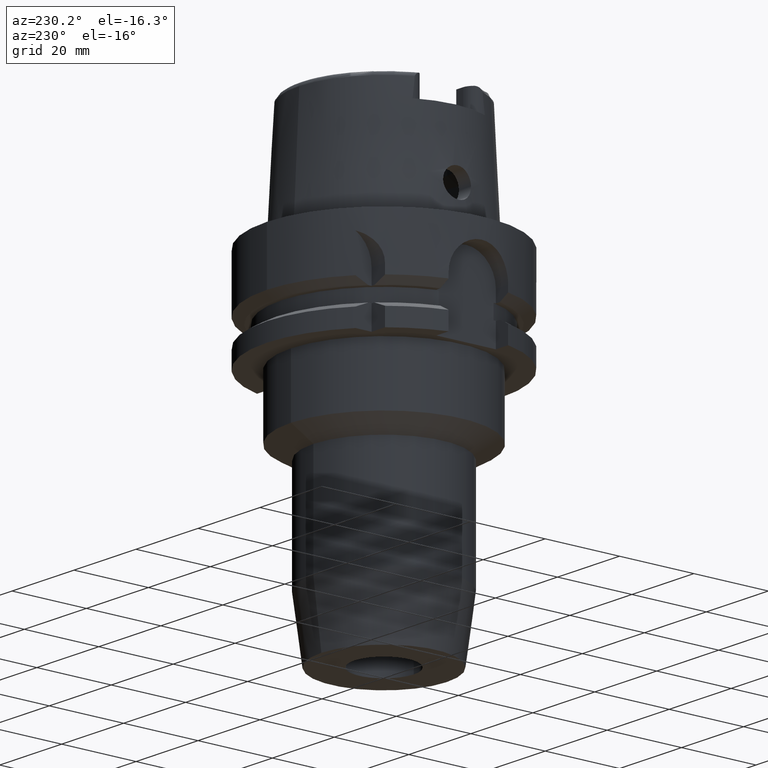
[diagram: clean part render]
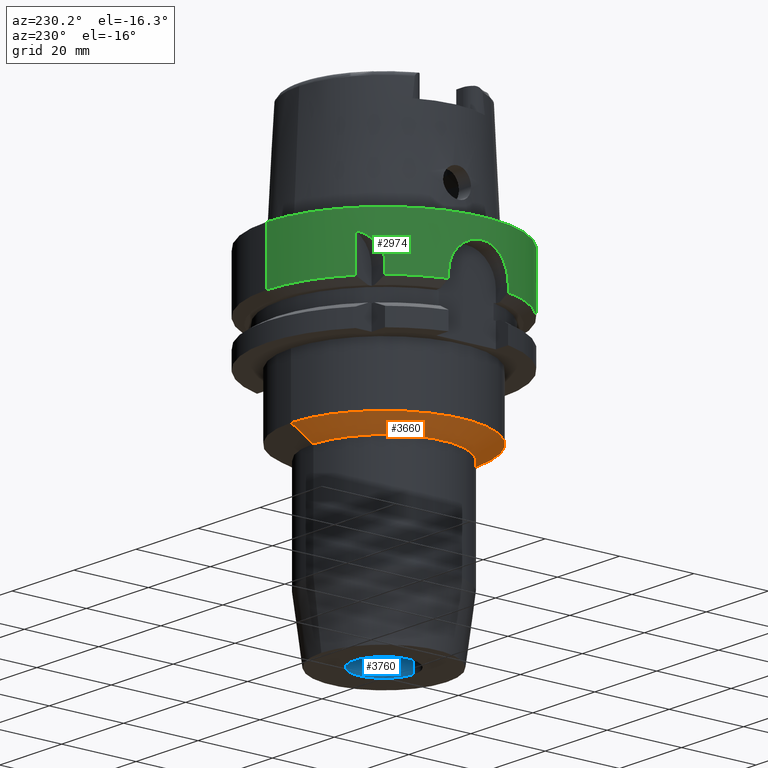
[diagram: same view with three faces highlighted in distinct colors, each labeled with its STEP entity id]
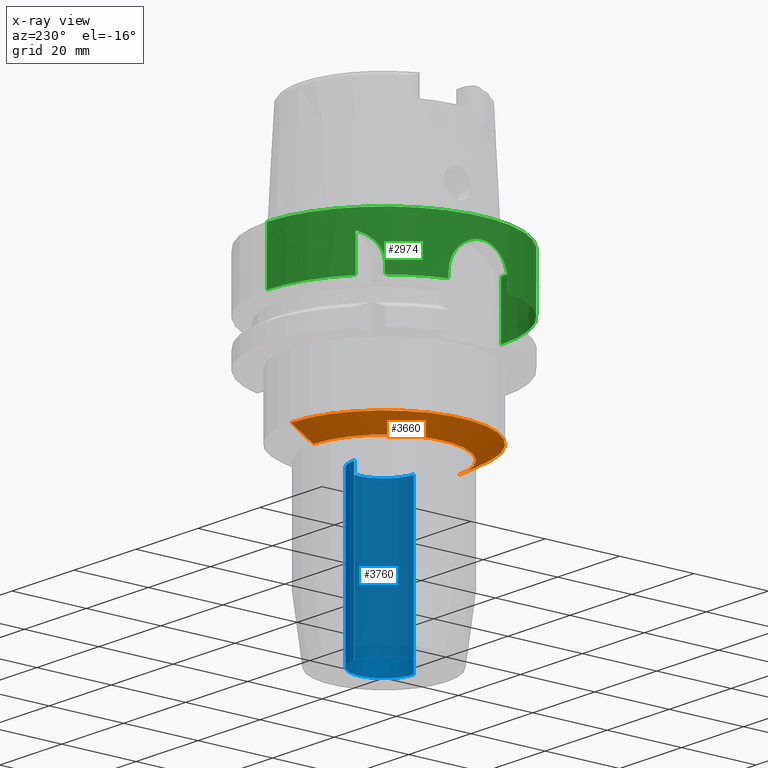
[diagram: x-ray of the same camera — body ghosted, the three highlighted faces saturated]
A machine part, auxiliary view with three faces highlighted in distinct colors.
The next image is the same camera in x-ray (body ghosted, the three faces saturated) — at least one of them is partly hidden behind the body in this view.
Their STEP definitions:

[orange] entity #3660 — the highlighted conical surface has half-angle 60.162 deg.
#1631=DIRECTION('',(0.E0,-8.674356569294E-1,-4.975493755272E-1));
#1632=VECTOR('',#1631,6.916939547123E0);
#1633=CARTESIAN_POINT('',(0.E0,2.5E1,-4.2E1));
#1634=LINE('',#1633,#1632);
#1654=CARTESIAN_POINT('',(0.E0,0.E0,-4.2E1));
#1655=DIRECTION('',(0.E0,0.E0,1.E0));
#1656=DIRECTION('',(0.E0,1.E0,0.E0));
#1657=AXIS2_PLACEMENT_3D('',#1654,#1655,#1656);
#1662=DIRECTION('',(0.E0,8.674356569294E-1,-4.975493755272E-1));
#1663=VECTOR('',#1662,6.916939547123E0);
#1664=CARTESIAN_POINT('',(0.E0,-2.5E1,-4.2E1));
#1665=LINE('',#1664,#1663);
#1669=CARTESIAN_POINT('',(0.E0,0.E0,-4.544151895223E1));
#1670=DIRECTION('',(0.E0,0.E0,-1.E0));
#1671=DIRECTION('',(0.E0,-1.E0,0.E0));
#1672=AXIS2_PLACEMENT_3D('',#1669,#1670,#1671);
#2396=CARTESIAN_POINT('',(0.E0,1.9E1,-4.544151895223E1));
#2397=VERTEX_POINT('',#2396);
#2398=CARTESIAN_POINT('',(0.E0,-1.9E1,-4.544151895223E1));
#2399=VERTEX_POINT('',#2398);
#2400=CARTESIAN_POINT('',(0.E0,2.5E1,-4.2E1));
#2401=VERTEX_POINT('',#2400);
#2402=CARTESIAN_POINT('',(0.E0,-2.5E1,-4.2E1));
#2403=VERTEX_POINT('',#2402);
#3648=CARTESIAN_POINT('',(0.E0,0.E0,-4.372075947612E1));
#3649=DIRECTION('',(0.E0,0.E0,1.E0));
#3650=DIRECTION('',(0.E0,1.E0,0.E0));
#3651=AXIS2_PLACEMENT_3D('',#3648,#3649,#3650);
#3652=CONICAL_SURFACE('',#3651,2.2E1,6.0162E1);
#3653=ORIENTED_EDGE('',*,*,#3638,.F.);
#3654=ORIENTED_EDGE('',*,*,#3615,.T.);
#3655=ORIENTED_EDGE('',*,*,#3642,.T.);
#3657=ORIENTED_EDGE('',*,*,#3656,.T.);
#3658=EDGE_LOOP('',(#3653,#3654,#3655,#3657));
#3659=FACE_OUTER_BOUND('',#3658,.F.);
#1658=CIRCLE('',#1657,2.5E1);
#1673=CIRCLE('',#1672,1.9E1);
#3615=EDGE_CURVE('',#2401,#2403,#1658,.T.);
#3638=EDGE_CURVE('',#2401,#2397,#1634,.T.);
#3642=EDGE_CURVE('',#2403,#2399,#1665,.T.);
#3656=EDGE_CURVE('',#2399,#2397,#1673,.T.);
#3660=ADVANCED_FACE('',(#3659),#3652,.T.);

[blue] entity #3760 — the highlighted cylindrical surface (partial cylindrical patch) has radius 8 mm, axis along (0, 0, 1).
#1745=CARTESIAN_POINT('',(0.E0,0.E0,-9.E1));
#1746=DIRECTION('',(0.E0,0.E0,-1.E0));
#1747=DIRECTION('',(0.E0,1.E0,0.E0));
#1748=AXIS2_PLACEMENT_3D('',#1745,#1746,#1747);
#1753=DIRECTION('',(0.E0,0.E0,1.E0));
#1754=VECTOR('',#1753,4.3E1);
#1755=CARTESIAN_POINT('',(0.E0,-8.E0,-9.E1));
#1756=LINE('',#1755,#1754);
#1760=DIRECTION('',(0.E0,0.E0,1.E0));
#1761=VECTOR('',#1760,4.3E1);
#1762=CARTESIAN_POINT('',(0.E0,8.E0,-9.E1));
#1763=LINE('',#1762,#1761);
#1783=CARTESIAN_POINT('',(0.E0,0.E0,-4.7E1));
#1784=DIRECTION('',(0.E0,0.E0,1.E0));
#1785=DIRECTION('',(0.E0,-1.E0,0.E0));
#1786=AXIS2_PLACEMENT_3D('',#1783,#1784,#1785);
#2380=CARTESIAN_POINT('',(0.E0,-8.E0,-4.7E1));
#2381=CARTESIAN_POINT('',(0.E0,8.E0,-4.7E1));
#2382=VERTEX_POINT('',#2380);
#2383=VERTEX_POINT('',#2381);
#2384=CARTESIAN_POINT('',(0.E0,8.E0,-9.E1));
#2385=VERTEX_POINT('',#2384);
#2386=CARTESIAN_POINT('',(0.E0,-8.E0,-9.E1));
#2387=VERTEX_POINT('',#2386);
#3748=CARTESIAN_POINT('',(0.E0,0.E0,-9.61E1));
#3749=DIRECTION('',(0.E0,0.E0,1.E0));
#3750=DIRECTION('',(0.E0,1.E0,0.E0));
#3751=AXIS2_PLACEMENT_3D('',#3748,#3749,#3750);
#3752=CYLINDRICAL_SURFACE('',#3751,8.E0);
#3753=ORIENTED_EDGE('',*,*,#3738,.T.);
#3755=ORIENTED_EDGE('',*,*,#3754,.F.);
#3756=ORIENTED_EDGE('',*,*,#3741,.F.);
#3757=ORIENTED_EDGE('',*,*,#3728,.F.);
#3758=EDGE_LOOP('',(#3753,#3755,#3756,#3757));
#3759=FACE_OUTER_BOUND('',#3758,.F.);
#1749=CIRCLE('',#1748,8.E0);
#1787=CIRCLE('',#1786,8.E0);
#3728=EDGE_CURVE('',#2385,#2387,#1749,.T.);
#3738=EDGE_CURVE('',#2385,#2383,#1763,.T.);
#3741=EDGE_CURVE('',#2387,#2382,#1756,.T.);
#3754=EDGE_CURVE('',#2382,#2383,#1787,.T.);
#3760=ADVANCED_FACE('',(#3759),#3752,.F.);

[green] entity #2974 — the highlighted cylindrical surface (partial cylindrical patch) has radius 31.5 mm, axis along (0, 0, 1).
#618=CARTESIAN_POINT('',(0.E0,0.E0,-4.263256414561E-14));
#619=DIRECTION('',(0.E0,0.E0,-1.E0));
#620=DIRECTION('',(0.E0,-1.E0,0.E0));
#621=AXIS2_PLACEMENT_3D('',#618,#619,#620);
#650=DIRECTION('',(-1.431529749944E-6,-1.176463978184E-6,-9.999999999983E-1));
#651=VECTOR('',#650,9.622451542092E0);
#652=CARTESIAN_POINT('',(-2.E1,2.433618704728E1,-5.000000000001E0));
#653=LINE('',#652,#651);
#657=DIRECTION('',(0.E0,-2.672583210396E-14,-1.E0));
#658=VECTOR('',#657,1.462250092524E1);
#659=CARTESIAN_POINT('',(0.E0,-3.15E1,1.894780628694E-14));
#660=LINE('',#659,#658);
#664=DIRECTION('',(-7.698373962255E-8,2.931890911883E-7,1.E0));
#665=VECTOR('',#664,1.622496606907E0);
#666=CARTESIAN_POINT('',(-3.046719534826E1,-8.000000475699E0,
-1.462249660691E1));
#667=LINE('',#666,#665);
#671=DIRECTION('',(-1.650069069103E-8,-6.283695033249E-8,-1.E0));
#672=VECTOR('',#671,1.622501850751E0);
#673=CARTESIAN_POINT('',(-3.046719547316E1,8.E0,-1.3E1));
#674=LINE('',#673,#672);
#678=DIRECTION('',(9.894060569839E-7,1.203919407604E-6,9.999999999988E-1));
#679=VECTOR('',#678,2.510797856236E0);
#680=CARTESIAN_POINT('',(-2.433618953148E1,1.999999697720E1,-1.462251175989E1));
#681=LINE('',#680,#679);
#685=CARTESIAN_POINT('',(-2.433618704728E1,2.E1,-1.211171390366E1));
#686=CARTESIAN_POINT('',(-2.433618704728E1,2.E1,-1.187976151639E1));
#687=CARTESIAN_POINT('',(-2.431967187217E1,2.002012070355E1,-1.141744171597E1));
#688=CARTESIAN_POINT('',(-2.424523651690E1,2.011035399618E1,-1.072764128587E1));
#689=CARTESIAN_POINT('',(-2.411963477382E1,2.026107967140E1,-1.004474704322E1));
#690=CARTESIAN_POINT('',(-2.394163707904E1,2.047146912532E1,-9.375543683463E0));
#691=CARTESIAN_POINT('',(-2.370766791638E1,2.074244920129E1,-8.721098005837E0));
#692=CARTESIAN_POINT('',(-2.341495401843E1,2.107291923719E1,-8.088342194841E0));
#693=CARTESIAN_POINT('',(-2.305738335122E1,2.146431902688E1,-7.478997873355E0));
#694=CARTESIAN_POINT('',(-2.262952407326E1,2.191582805010E1,-6.899673137808E0));
#695=CARTESIAN_POINT('',(-2.212344080216E1,2.242769169688E1,-6.355027265746E0));
#696=CARTESIAN_POINT('',(-2.152829385766E1,2.300088386258E1,-5.850141482533E0));
#697=CARTESIAN_POINT('',(-2.083304074189E1,2.363406048311E1,-5.392523506350E0));
#698=CARTESIAN_POINT('',(-2.029154814905E1,2.409658653099E1,-5.123437400174E0));
#699=CARTESIAN_POINT('',(-2.E1,2.433618704728E1,-5.000000000001E0));
#716=CARTESIAN_POINT('',(-2.000001377482E1,2.433617572681E1,-1.462245154208E1));
#797=CARTESIAN_POINT('',(-2.433618953148E1,1.999999697720E1,-1.462251175989E1));
#814=CARTESIAN_POINT('',(0.E0,0.E0,-1.462250092524E1));
#815=DIRECTION('',(0.E0,0.E0,1.E0));
#816=DIRECTION('',(-7.725773665802E-1,6.349206349206E-1,0.E0));
#817=AXIS2_PLACEMENT_3D('',#814,#815,#816);
#822=CARTESIAN_POINT('',(-3.046719549993E1,7.999999898047E0,-1.462250185075E1));
#846=CARTESIAN_POINT('',(-3.046719547316E1,8.E0,-1.3E1));
#847=CARTESIAN_POINT('',(-3.046719547316E1,8.E0,-1.245224003607E1));
#848=CARTESIAN_POINT('',(-3.049727303426E1,7.887058323595E0,-1.135073918024E1));
#849=CARTESIAN_POINT('',(-3.062689466042E1,7.375462100777E0,-9.752102770187E0));
#850=CARTESIAN_POINT('',(-3.082074453848E1,6.532773635205E0,-8.278876849185E0));
#851=CARTESIAN_POINT('',(-3.104430623296E1,5.390237385849E0,-7.006966913826E0));
#852=CARTESIAN_POINT('',(-3.125563068838E1,4.008870959063E0,-6.008196302168E0));
#853=CARTESIAN_POINT('',(-3.141705811214E1,2.464778611533E0,-5.328000548067E0));
#854=CARTESIAN_POINT('',(-3.150356827909E1,8.304197450128E-1,
-4.985634634504E0));
#855=CARTESIAN_POINT('',(-3.150352683520E1,-8.321668194072E-1,
-4.985822563404E0));
#856=CARTESIAN_POINT('',(-3.141693342003E1,-2.466337132339E0,
-5.328506065960E0));
#857=CARTESIAN_POINT('',(-3.125544521441E1,-4.010327446364E0,
-6.009023176732E0));
#858=CARTESIAN_POINT('',(-3.104408251685E1,-5.391520358267E0,
-7.008128874597E0));
#859=CARTESIAN_POINT('',(-3.082053940857E1,-6.533720827611E0,
-8.280182636067E0));
#860=CARTESIAN_POINT('',(-3.062672186404E1,-7.376197431370E0,
-9.753750452463E0));
#861=CARTESIAN_POINT('',(-3.049718861268E1,-7.887319828262E0,
-1.135225951337E1));
#862=CARTESIAN_POINT('',(-3.046719547316E1,-8.E0,-1.245284904069E1));
#863=CARTESIAN_POINT('',(-3.046719547316E1,-8.E0,-1.3E1));
#1307=CARTESIAN_POINT('',(0.E0,0.E0,-1.462250092524E1));
#1308=DIRECTION('',(0.E0,0.E0,1.E0));
#1309=DIRECTION('',(-9.672125547036E-1,-2.539682539683E-1,0.E0));
#1310=AXIS2_PLACEMENT_3D('',#1307,#1308,#1309);
#1377=DIRECTION('',(0.E0,2.672583210396E-14,-1.E0));
#1378=VECTOR('',#1377,1.462250092524E1);
#1379=CARTESIAN_POINT('',(0.E0,3.15E1,1.894780628694E-14));
#1380=LINE('',#1379,#1378);
#1438=CARTESIAN_POINT('',(0.E0,0.E0,-1.462250092524E1));
#1439=DIRECTION('',(0.E0,0.E0,1.E0));
#1440=DIRECTION('',(0.E0,1.E0,0.E0));
#1441=AXIS2_PLACEMENT_3D('',#1438,#1439,#1440);
#2443=VERTEX_POINT('',#716);
#2444=CARTESIAN_POINT('',(-2.E1,2.433618704728E1,-5.000000000001E0));
#2445=VERTEX_POINT('',#2444);
#2472=CARTESIAN_POINT('',(-3.046719547316E1,-8.E0,-1.3E1));
#2473=VERTEX_POINT('',#2472);
#2474=CARTESIAN_POINT('',(-3.046719534826E1,-8.000000475699E0,
-1.462249660691E1));
#2475=VERTEX_POINT('',#2474);
#2495=VERTEX_POINT('',#822);
#2496=CARTESIAN_POINT('',(-3.046719547316E1,8.E0,-1.3E1));
#2497=VERTEX_POINT('',#2496);
#2551=CARTESIAN_POINT('',(0.E0,-3.15E1,-1.462250092524E1));
#2552=VERTEX_POINT('',#2551);
#2554=CARTESIAN_POINT('',(0.E0,3.15E1,-1.462250092524E1));
#2555=VERTEX_POINT('',#2554);
#2556=VERTEX_POINT('',#797);
#2557=CARTESIAN_POINT('',(0.E0,3.15E1,1.894780628694E-14));
#2558=VERTEX_POINT('',#2557);
#2559=CARTESIAN_POINT('',(0.E0,-3.15E1,-4.263256414561E-14));
#2560=VERTEX_POINT('',#2559);
#2561=CARTESIAN_POINT('',(-2.433618704728E1,2.E1,-1.211171390366E1));
#2562=VERTEX_POINT('',#2561);
#2944=CARTESIAN_POINT('',(0.E0,0.E0,-9.61E1));
#2945=DIRECTION('',(0.E0,0.E0,1.E0));
#2946=DIRECTION('',(0.E0,1.E0,0.E0));
#2947=AXIS2_PLACEMENT_3D('',#2944,#2945,#2946);
#2948=CYLINDRICAL_SURFACE('',#2947,3.15E1);
#2950=ORIENTED_EDGE('',*,*,#2949,.T.);
#2952=ORIENTED_EDGE('',*,*,#2951,.F.);
#2954=ORIENTED_EDGE('',*,*,#2953,.F.);
#2955=ORIENTED_EDGE('',*,*,#2933,.F.);
#2957=ORIENTED_EDGE('',*,*,#2956,.T.);
#2959=ORIENTED_EDGE('',*,*,#2958,.F.);
#2961=ORIENTED_EDGE('',*,*,#2960,.T.);
#2963=ORIENTED_EDGE('',*,*,#2962,.F.);
#2965=ORIENTED_EDGE('',*,*,#2964,.T.);
#2967=ORIENTED_EDGE('',*,*,#2966,.F.);
#2969=ORIENTED_EDGE('',*,*,#2968,.T.);
#2971=ORIENTED_EDGE('',*,*,#2970,.T.);
#2972=EDGE_LOOP('',(#2950,#2952,#2954,#2955,#2957,#2959,#2961,#2963,#2965,#2967,
#2969,#2971));
#2973=FACE_OUTER_BOUND('',#2972,.F.);
#622=CIRCLE('',#621,3.15E1);
#700=B_SPLINE_CURVE_WITH_KNOTS('',3,(#685,#686,#687,#688,#689,#690,#691,#692,
#693,#694,#695,#696,#697,#698,#699),.UNSPECIFIED.,.F.,.F.,(4,1,1,1,1,1,1,1,1,1,
1,1,4),(0.E0,8.333333333333E-2,1.666666666667E-1,2.5E-1,3.333333333333E-1,
4.166666666667E-1,5.E-1,5.833333333333E-1,6.666666666667E-1,7.5E-1,
8.333333333333E-1,9.166666666667E-1,1.E0),.UNSPECIFIED.);
#818=CIRCLE('',#817,3.15E1);
#864=B_SPLINE_CURVE_WITH_KNOTS('',3,(#846,#847,#848,#849,#850,#851,#852,#853,
#854,#855,#856,#857,#858,#859,#860,#861,#862,#863),.UNSPECIFIED.,.F.,.F.,(4,1,1,
1,1,1,1,1,1,1,1,1,1,1,1,4),(0.E0,6.666666666667E-2,1.333333333333E-1,2.E-1,
2.666666666667E-1,3.333333333333E-1,4.E-1,4.666666666667E-1,5.333333333333E-1,
6.E-1,6.666666666667E-1,7.333333333333E-1,8.E-1,8.666666666667E-1,
9.333333333333E-1,1.E0),.UNSPECIFIED.);
#1311=CIRCLE('',#1310,3.15E1);
#1442=CIRCLE('',#1441,3.15E1);
#2933=EDGE_CURVE('',#2560,#2558,#622,.T.);
#2949=EDGE_CURVE('',#2445,#2443,#653,.T.);
#2951=EDGE_CURVE('',#2555,#2443,#1442,.T.);
#2953=EDGE_CURVE('',#2558,#2555,#1380,.T.);
#2956=EDGE_CURVE('',#2560,#2552,#660,.T.);
#2958=EDGE_CURVE('',#2475,#2552,#1311,.T.);
#2960=EDGE_CURVE('',#2475,#2473,#667,.T.);
#2962=EDGE_CURVE('',#2497,#2473,#864,.T.);
#2964=EDGE_CURVE('',#2497,#2495,#674,.T.);
#2966=EDGE_CURVE('',#2556,#2495,#818,.T.);
#2968=EDGE_CURVE('',#2556,#2562,#681,.T.);
#2970=EDGE_CURVE('',#2562,#2445,#700,.T.);
#2974=ADVANCED_FACE('',(#2973),#2948,.T.);